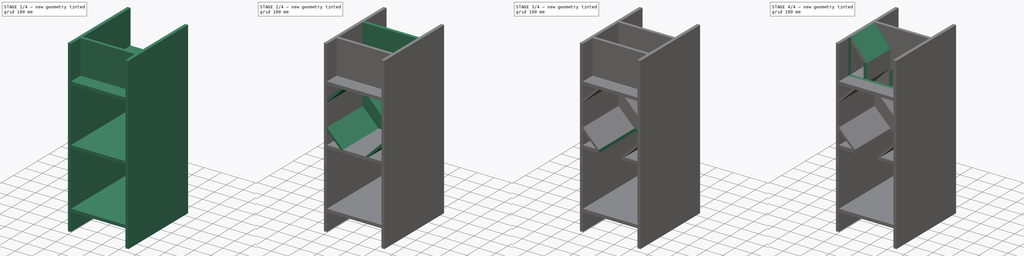
[diagram: build sequence overview — one tinted view per stage of 4, left to right]
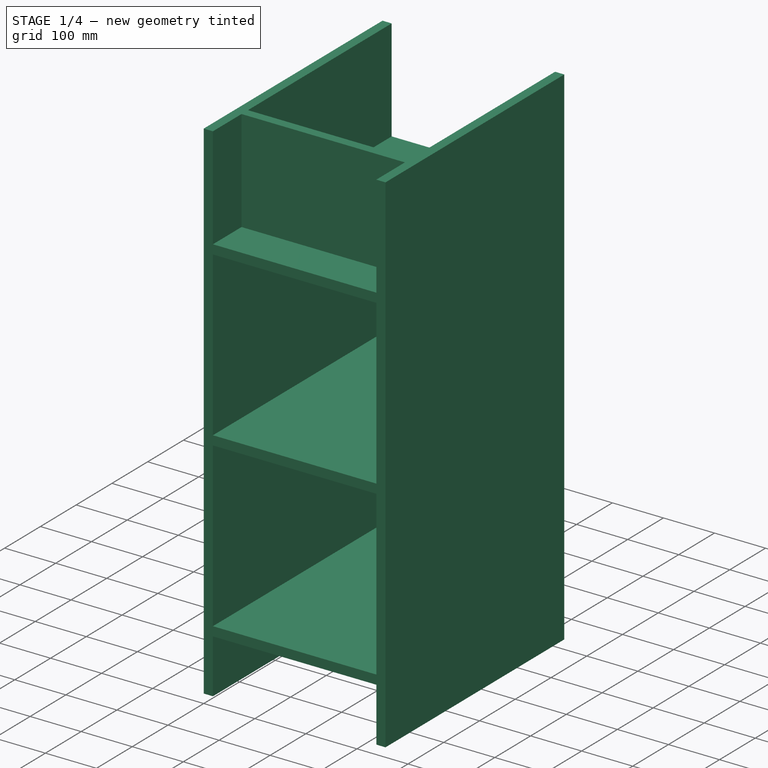
[diagram: stage 1 of 4 — iso view after this stage's code; geometry added in this stage tinted green]
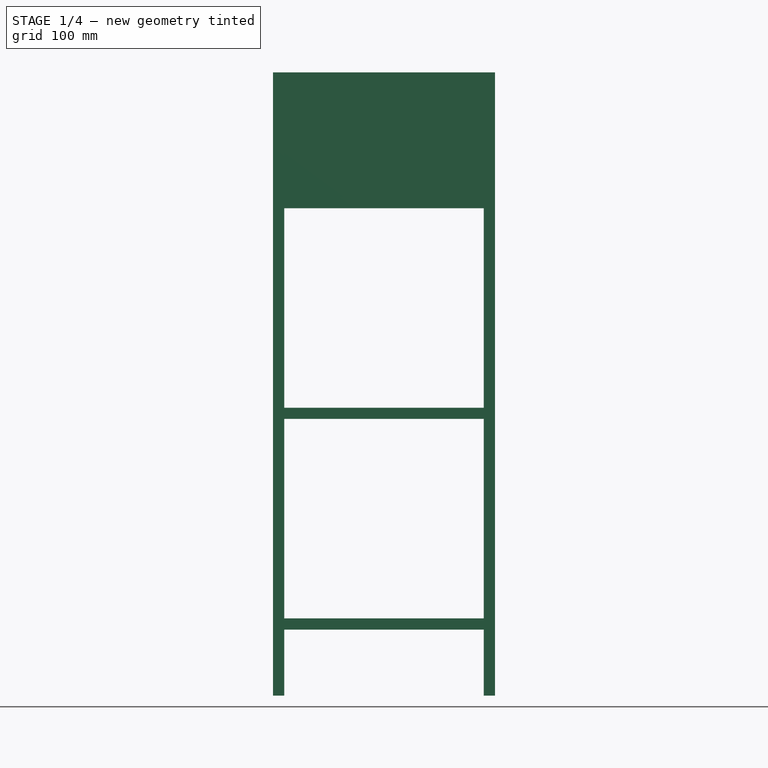
[diagram: stage 1 of 4 — front view after this stage's code; geometry added in this stage tinted green]
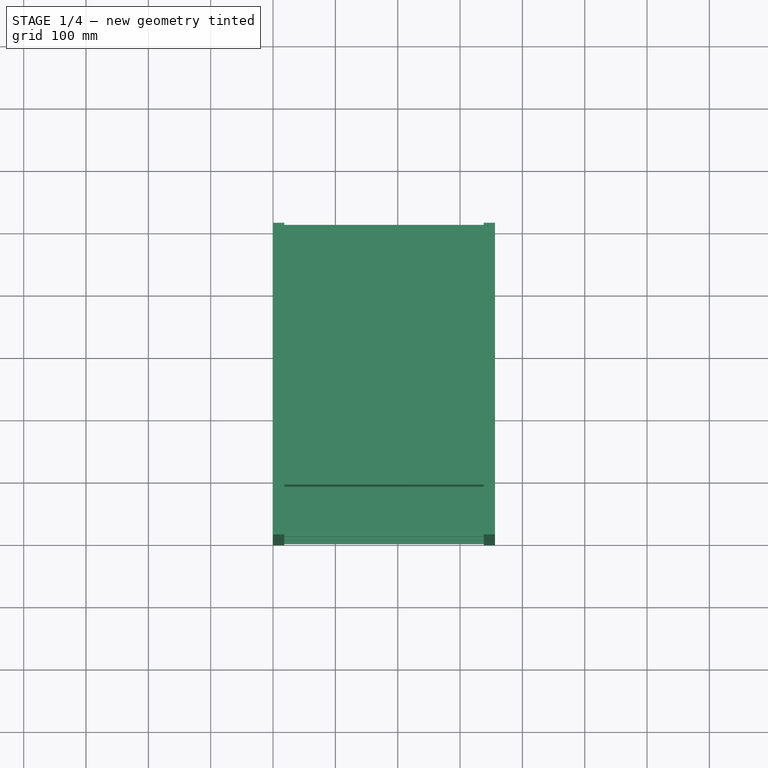
[diagram: stage 1 of 4 — top view after this stage's code; geometry added in this stage tinted green]
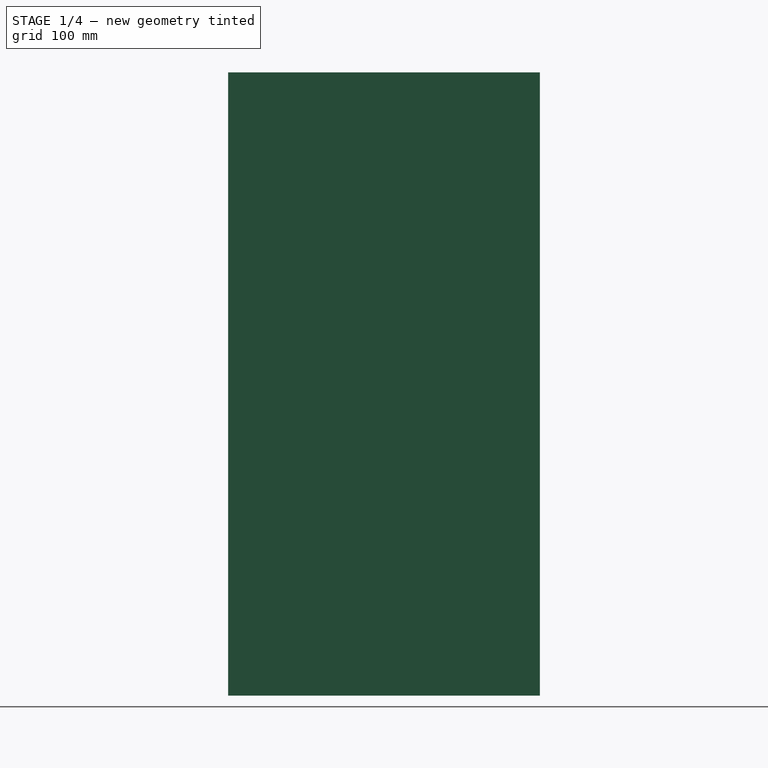
[diagram: stage 1 of 4 — right view after this stage's code; geometry added in this stage tinted green]
FCSTD DOCUMENT  (FreeCAD 0.21R33668 +26 (Git))
Label: Compostera3D
License: All rights reserved
LicenseURL: https://en.wikipedia.org/wiki/All_rights_reserved
objects: Sketcher::SketchObject×11, PartDesign::Pad×7, PartDesign::Pocket×4, PartDesign::Body×1, App::Part×1
note: 34 computed .brp shape members not serialized (recipe doc carries the construction recipe); baked Part::Feature solids carry a one-line shape summary decoded from their .brp

FEATURE [Sketcher::SketchObject] Sketch
  FullyConstrained = true
  MapMode = 5
  Placement = pos=(0,0,0) rot=(1,0,0;1.5708rad)
  Support = -> [XZ_Plane001]
  sketch-geometry (4):
    g0: LineSegment StartX=0 StartY=0 StartZ=0 EndX=356 EndY=0 EndZ=0
    g1: LineSegment StartX=356 StartY=0 StartZ=0 EndX=356 EndY=1000 EndZ=0
    g2: LineSegment StartX=356 StartY=1000 StartZ=0 EndX=0 EndY=1000 EndZ=0
    g3: LineSegment StartX=0 StartY=1000 StartZ=0 EndX=0 EndY=0 EndZ=0
  constraints (11):
    c: Coincident(g0,g1)
    c: Coincident(g1,g2)
    c: Coincident(g2,g3)
    c: Coincident(g3,g0)
    c: Horizontal(g0)
    c: Horizontal(g2)
    c: Vertical(g1)
    c: Vertical(g3)
    c: Coincident(g0,g-1)
    c: DistanceY(g0,g2) = 1000
    c: DistanceX(g0,g0) = 356
FEATURE [PartDesign::Pad] Pad
  Direction = (0,-1,2e-16)
  Length = 500
  Length2 = 10
  Placement = pos=(0,0,0) rot=(1,0,0;1.5708rad)
  Profile = -> Sketch
  ReferenceAxis = -> Sketch [N_Axis]
  Type = 0
FEATURE [Sketcher::SketchObject] Sketch001
  ExternalGeometry = -> [Pad]
  FullyConstrained = true
  MapMode = 5
  Placement = pos=(0,-500,2.21e-13) rot=(1,0,0;1.5708rad)
  Support = -> [Pad]
  sketch-geometry (16):
    g0: LineSegment StartX=18 StartY=1000 StartZ=0 EndX=338 EndY=1000 EndZ=0
    g1: LineSegment StartX=338 StartY=1000 StartZ=0 EndX=338 EndY=800 EndZ=0
    g2: LineSegment StartX=338 StartY=800 StartZ=0 EndX=18 EndY=800 EndZ=0
    g3: LineSegment StartX=18 StartY=800 StartZ=0 EndX=18 EndY=1000 EndZ=0
    g4: LineSegment StartX=18 StartY=782 StartZ=0 EndX=338 EndY=782 EndZ=0
    g5: LineSegment StartX=338 StartY=782 StartZ=0 EndX=338 EndY=462 EndZ=0
    g6: LineSegment StartX=338 StartY=462 StartZ=0 EndX=18 EndY=462 EndZ=0
    g7: LineSegment StartX=18 StartY=462 StartZ=0 EndX=18 EndY=782 EndZ=0
    g8: LineSegment StartX=18 StartY=444 StartZ=0 EndX=338 EndY=444 EndZ=0
    g9: LineSegment StartX=338 StartY=444 StartZ=0 EndX=338 EndY=124 EndZ=0
    g10: LineSegment StartX=338 StartY=124 StartZ=0 EndX=18 EndY=124 EndZ=0
    g11: LineSegment StartX=18 StartY=124 StartZ=0 EndX=18 EndY=444 EndZ=0
    g12: LineSegment StartX=18 StartY=0 StartZ=0 EndX=338 EndY=0 EndZ=0
    g13: LineSegment StartX=338 StartY=0 StartZ=0 EndX=338 EndY=106 EndZ=0
    g14: LineSegment StartX=338 StartY=106 StartZ=0 EndX=18 EndY=106 EndZ=0
    g15: LineSegment StartX=18 StartY=106 StartZ=0 EndX=18 EndY=0 EndZ=0
  constraints (48):
    c: Coincident(g0,g1)
    c: Coincident(g1,g2)
    c: Coincident(g2,g3)
    c: Coincident(g3,g0)
    c: Horizontal(g0)
    c: Horizontal(g2)
    c: Vertical(g1)
    c: Vertical(g3)
    c: PointOnObject(g0,g-3)
    c: DistanceX(g-3,g0) = 18
    c: DistanceX(g0,g0) = 320
    c: DistanceY(g2,g0) = 200
    c: Coincident(g4,g5)
    c: Coincident(g5,g6)
    c: Coincident(g6,g7)
    c: Coincident(g7,g4)
    c: Horizontal(g4)
    c: Horizontal(g6)
    c: Vertical(g5)
    c: Vertical(g7)
    c: DistanceX(g4,g-3) = 18
    c: DistanceX(g4,g4) = 320
    c: DistanceY(g7,g7) = 320
    c: DistanceY(g4,g2) = 18
    c: Coincident(g8,g9)
    c: Coincident(g9,g10)
    c: Coincident(g10,g11)
    c: Coincident(g11,g8)
    c: Horizontal(g8)
    c: Horizontal(g10)
    c: Vertical(g9)
    c: Vertical(g11)
    c: DistanceY(g8,g6) = 18
    c: DistanceY(g11,g11) = 320
    c: DistanceX(g8,g8) = 320
    c: DistanceX(g-1,g10) = 18
    c: Coincident(g12,g13)
    c: Coincident(g13,g14)
    c: Coincident(g14,g15)
    c: Coincident(g15,g12)
    c: Horizontal(g12)
    c: Horizontal(g14)
    c: Vertical(g13)
    c: Vertical(g15)
    c: PointOnObject(g12,g-1)
    c: DistanceX(g-1,g12) = 18
    c: DistanceX(g14,g13) = 320
    c: DistanceY(g14,g10) = 18
FEATURE [PartDesign::Pocket] Pocket
  BaseFeature = -> Pad
  Direction = (0,1,-2e-16)
  Length = 500
  Length2 = 5
  Placement = pos=(0,0,0) rot=(1,0,0;1.5708rad)
  Profile = -> Sketch001
  ReferenceAxis = -> Sketch001 [N_Axis]
  Type = 0
FEATURE [Sketcher::SketchObject] Sketch003
  ExternalGeometry = -> [Pocket]
  FullyConstrained = true
  MapMode = 5
  Placement = pos=(0,5.296e-13,800) rot=(0,0,1;3.14159rad)
  Support = -> [Pocket]
  sketch-geometry (4):
    g0: LineSegment StartX=-338 StartY=420 StartZ=0 EndX=-18 EndY=420 EndZ=0
    g1: LineSegment StartX=-18 StartY=420 StartZ=0 EndX=-18 EndY=402 EndZ=0
    g2: LineSegment StartX=-18 StartY=402 StartZ=0 EndX=-338 EndY=402 EndZ=0
    g3: LineSegment StartX=-338 StartY=402 StartZ=0 EndX=-338 EndY=420 EndZ=0
  constraints (12):
    c: Coincident(g0,g1)
    c: Coincident(g1,g2)
    c: Coincident(g2,g3)
    c: Coincident(g3,g0)
    c: Horizontal(g0)
    c: Horizontal(g2)
    c: Vertical(g1)
    c: Vertical(g3)
    c: DistanceX(g0,g0) = 320
    c: PointOnObject(g0,g-3)
    c: DistanceY(g3,g3) = 18
    c: DistanceY(g0,g-3) = 80
FEATURE [PartDesign::Pad] Pad001
  BaseFeature = -> Pocket
  Direction = (0,2e-16,1)
  Length = 200
  Length2 = 10
  Placement = pos=(0,0,0) rot=(1,0,0;1.5708rad)
  Profile = -> Sketch003
  ReferenceAxis = -> Sketch003 [N_Axis]
  Type = 0
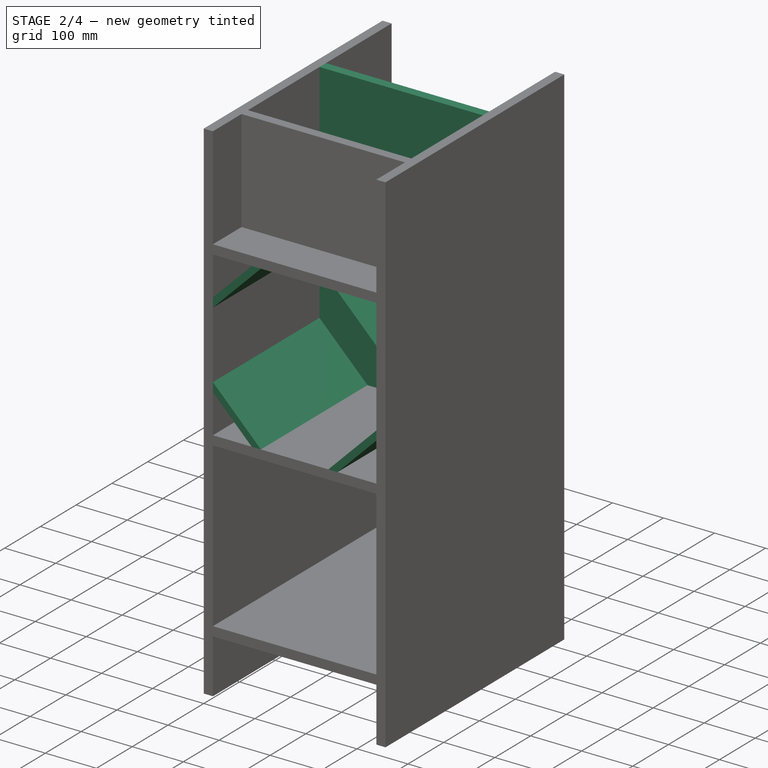
[diagram: stage 2 of 4 — iso view after this stage's code; geometry added in this stage tinted green]
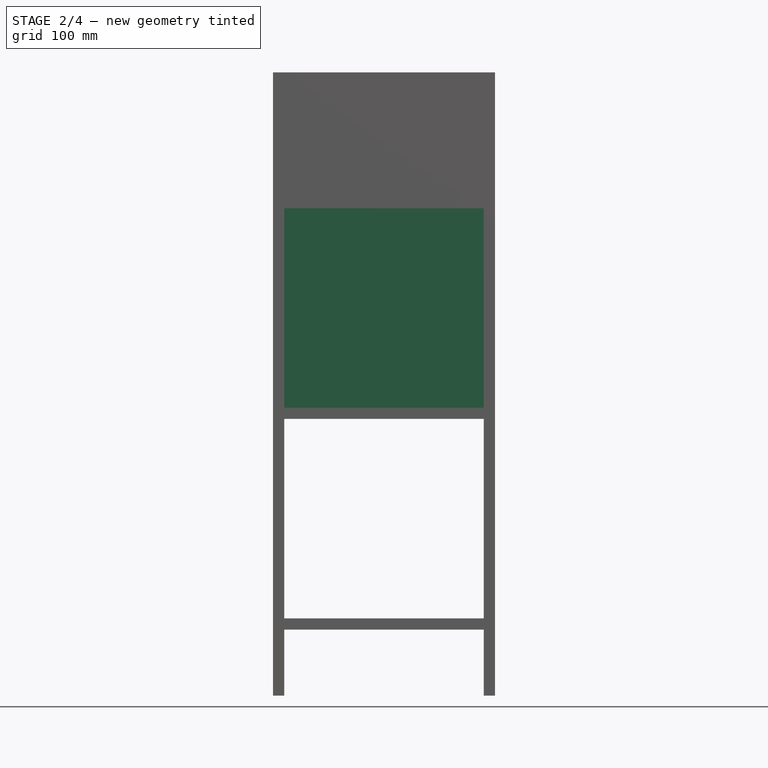
[diagram: stage 2 of 4 — front view after this stage's code; geometry added in this stage tinted green]
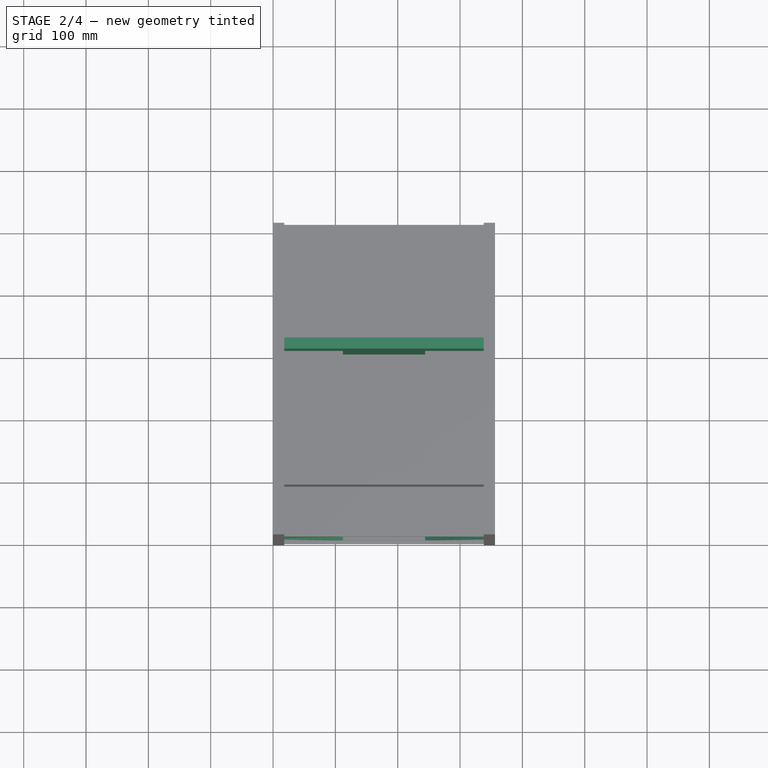
[diagram: stage 2 of 4 — top view after this stage's code; geometry added in this stage tinted green]
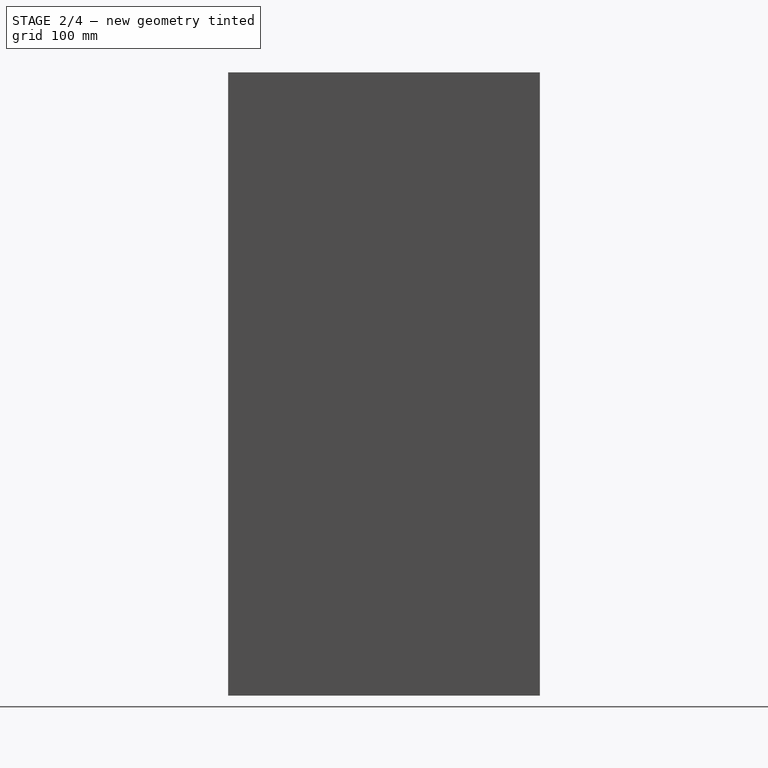
[diagram: stage 2 of 4 — right view after this stage's code; geometry added in this stage tinted green]
FEATURE [Sketcher::SketchObject] Sketch004
  ExternalGeometry = -> [Pad001]
  FullyConstrained = true
  MapMode = 5
  Placement = pos=(0,3.059e-13,462) rot=(0,0,1;3.14159rad)
  Support = -> [Pad001]
  sketch-geometry (4):
    g0: LineSegment StartX=-338 StartY=202 StartZ=0 EndX=-18 EndY=202 EndZ=0
    g1: LineSegment StartX=-18 StartY=202 StartZ=0 EndX=-18 EndY=184 EndZ=0
    g2: LineSegment StartX=-18 StartY=184 StartZ=0 EndX=-338 EndY=184 EndZ=0
    g3: LineSegment StartX=-338 StartY=184 StartZ=0 EndX=-338 EndY=202 EndZ=0
  constraints (12):
    c: Coincident(g0,g1)
    c: Coincident(g1,g2)
    c: Coincident(g2,g3)
    c: Coincident(g3,g0)
    c: Horizontal(g0)
    c: Horizontal(g2)
    c: Vertical(g1)
    c: Vertical(g3)
    c: PointOnObject(g0,g-3)
    c: DistanceX(g0,g0) = 320
    c: DistanceY(g3,g3) = 18
    c: DistanceY(g-3,g2) = 184
FEATURE [PartDesign::Pad] Pad002
  BaseFeature = -> Pad001
  Direction = (0,7e-16,1)
  Length = 538
  Length2 = 10
  Placement = pos=(0,0,0) rot=(1,0,0;1.5708rad)
  Profile = -> Sketch004
  ReferenceAxis = -> Sketch004 [N_Axis]
  Type = 0
FEATURE [Sketcher::SketchObject] Sketch005
  ExternalGeometry = -> [Pad002]
  FullyConstrained = true
  MapMode = 5
  Placement = pos=(0,5.296e-13,800) rot=(0,0,1;3.14159rad)
  Support = -> [Pad002]
  sketch-geometry (4):
    g0: LineSegment StartX=-244 StartY=402 StartZ=0 EndX=-112 EndY=402 EndZ=0
    g1: LineSegment StartX=-112 StartY=402 StartZ=0 EndX=-112 EndY=202 EndZ=0
    g2: LineSegment StartX=-112 StartY=202 StartZ=0 EndX=-244 EndY=202 EndZ=0
    g3: LineSegment StartX=-244 StartY=202 StartZ=0 EndX=-244 EndY=402 EndZ=0
  constraints (12):
    c: Coincident(g0,g1)
    c: Coincident(g1,g2)
    c: Coincident(g2,g3)
    c: Coincident(g3,g0)
    c: Horizontal(g0)
    c: Horizontal(g2)
    c: Vertical(g1)
    c: Vertical(g3)
    c: PointOnObject(g0,g-3)
    c: PointOnObject(g2,g-4)
    c: DistanceX(g0,g0) = 132
    c: DistanceX(g-5,g0) = 94
FEATURE [PartDesign::Pocket] Pocket001
  BaseFeature = -> Pad002
  Direction = (0,-8e-16,-1)
  Length = 18
  Length2 = 5
  Placement = pos=(0,0,0) rot=(1,0,0;1.5708rad)
  Profile = -> Sketch005
  ReferenceAxis = -> Sketch005 [N_Axis]
  Type = 0
FEATURE [Sketcher::SketchObject] Sketch006
  ExternalGeometry = -> [Pocket001]
  FullyConstrained = true
  MapMode = 5
  Placement = pos=(0,-202,1.56e-13) rot=(1,0,0;1.5708rad)
  Support = -> [Pocket001]
  sketch-geometry (16):
    g0: LineSegment StartX=112 StartY=782 StartZ=0 EndX=18 EndY=688 EndZ=0
    g1: LineSegment StartX=94 StartY=782 StartZ=0 EndX=18 EndY=706 EndZ=0
    g2: LineSegment StartX=244 StartY=782 StartZ=0 EndX=338 EndY=688 EndZ=0
    g3: LineSegment StartX=262 StartY=782 StartZ=0 EndX=338 EndY=706 EndZ=0
    g4: LineSegment StartX=18 StartY=538 StartZ=0 EndX=94 EndY=462 EndZ=0
    g5: LineSegment StartX=18 StartY=556 StartZ=0 EndX=112 EndY=462 EndZ=0
    g6: LineSegment StartX=244 StartY=462 StartZ=0 EndX=338 EndY=556 EndZ=0
    g7: LineSegment StartX=338 StartY=538 StartZ=0 EndX=262 EndY=462 EndZ=0
    g8: LineSegment StartX=18 StartY=556 StartZ=0 EndX=18 EndY=538 EndZ=0
    g9: LineSegment StartX=94 StartY=462 StartZ=0 EndX=112 EndY=462 EndZ=0
    g10: LineSegment StartX=262 StartY=462 StartZ=0 EndX=244 EndY=462 EndZ=0
    g11: LineSegment StartX=338 StartY=556 StartZ=0 EndX=338 EndY=538 EndZ=0
    g12: LineSegment StartX=18 StartY=706 StartZ=0 EndX=18 EndY=688 EndZ=0
    g13: LineSegment StartX=94 StartY=782 StartZ=0 EndX=112 EndY=782 EndZ=0
    g14: LineSegment StartX=244 StartY=782 StartZ=0 EndX=262 EndY=782 EndZ=0
    g15: LineSegment StartX=338 StartY=706 StartZ=0 EndX=338 EndY=688 EndZ=0
  constraints (47):
    c: Coincident(g0,g-3)
    c: PointOnObject(g0,g-4)
    c: PointOnObject(g1,g-3)
    c: PointOnObject(g1,g-4)
    c: DistanceX(g-4,g1) = 76
    c: DistanceY(g1,g-4) = 76
    c: DistanceY(g0,g1) = 18
    c: Coincident(g2,g-5)
    c: PointOnObject(g2,g-6)
    c: PointOnObject(g3,g-5)
    c: PointOnObject(g3,g-6)
    c: DistanceX(g3,g-6) = 76
    c: DistanceY(g2,g3) = 18
    c: DistanceY(g3,g-6) = 76
    c: PointOnObject(g4,g-4)
    c: PointOnObject(g4,g-7)
    c: PointOnObject(g5,g-4)
    c: PointOnObject(g5,g-7)
    c: PointOnObject(g6,g-7)
    c: PointOnObject(g7,g-6)
    c: PointOnObject(g7,g-7)
    c: DistanceY(g4,g5) = 18
    c: DistanceY(g-7,g4) = 76
    c: PointOnObject(g6,g-6)
    c: DistanceY(g7,g6) = 18
    c: DistanceY(g-7,g7) = 76
    c: DistanceX(g-7,g4) = 76
    c: DistanceX(g4,g5) = 18
    c: DistanceX(g6,g7) = 18
    c: DistanceX(g7,g-7) = 76
    c: Coincident(g8,g5)
    c: Coincident(g8,g4)
    c: Coincident(g9,g4)
    c: Coincident(g9,g5)
    c: Coincident(g10,g7)
    c: Coincident(g10,g6)
    c: Coincident(g11,g6)
    c: Coincident(g11,g7)
    c: Coincident(g12,g1)
    c: Coincident(g12,g0)
    c: PointOnObject(g13,g1)
    c: Coincident(g13,g0)
    c: Horizontal(g13)
    c: Coincident(g14,g2)
    c: Coincident(g14,g3)
    c: Coincident(g15,g3)
    c: Coincident(g15,g2)
FEATURE [PartDesign::Pad] Pad003
  BaseFeature = -> Pocket001
  Direction = (0,-1,7e-16)
  Length = 298
  Length2 = 10
  Placement = pos=(0,0,0) rot=(1,0,0;1.5708rad)
  Profile = -> Sketch006
  ReferenceAxis = -> Sketch006 [N_Axis]
  Type = 0
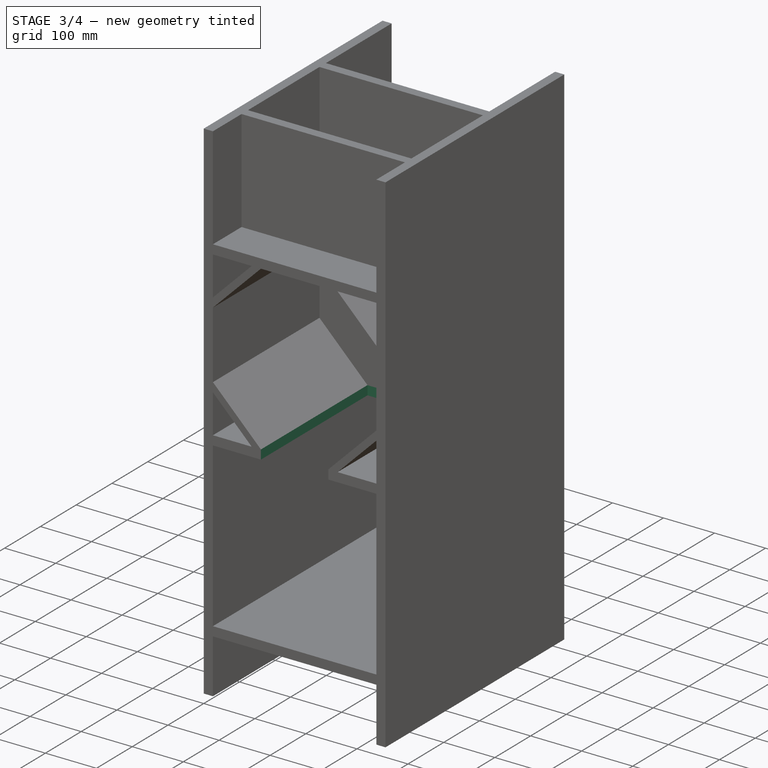
[diagram: stage 3 of 4 — iso view after this stage's code; geometry added in this stage tinted green]
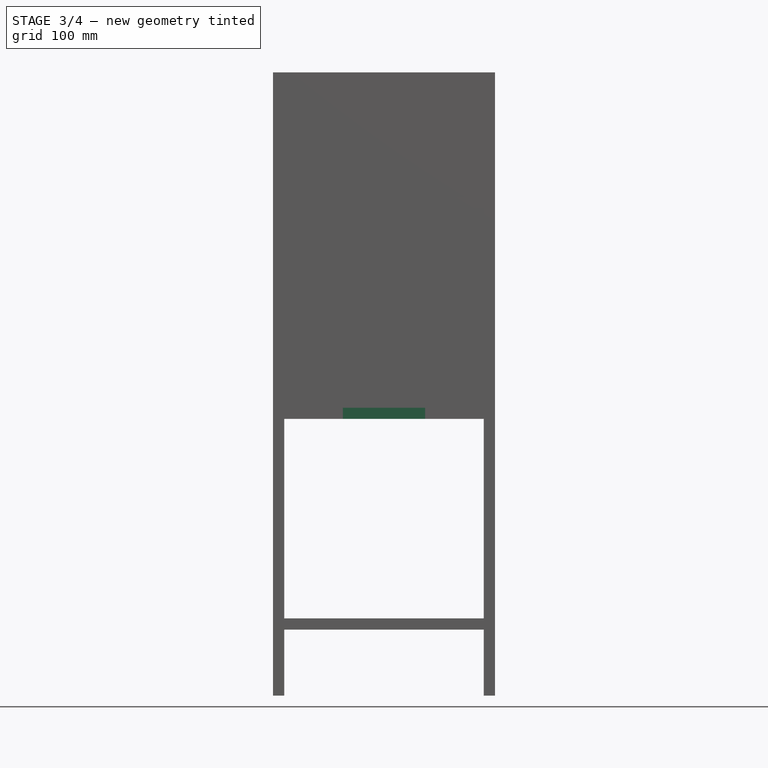
[diagram: stage 3 of 4 — front view after this stage's code; geometry added in this stage tinted green]
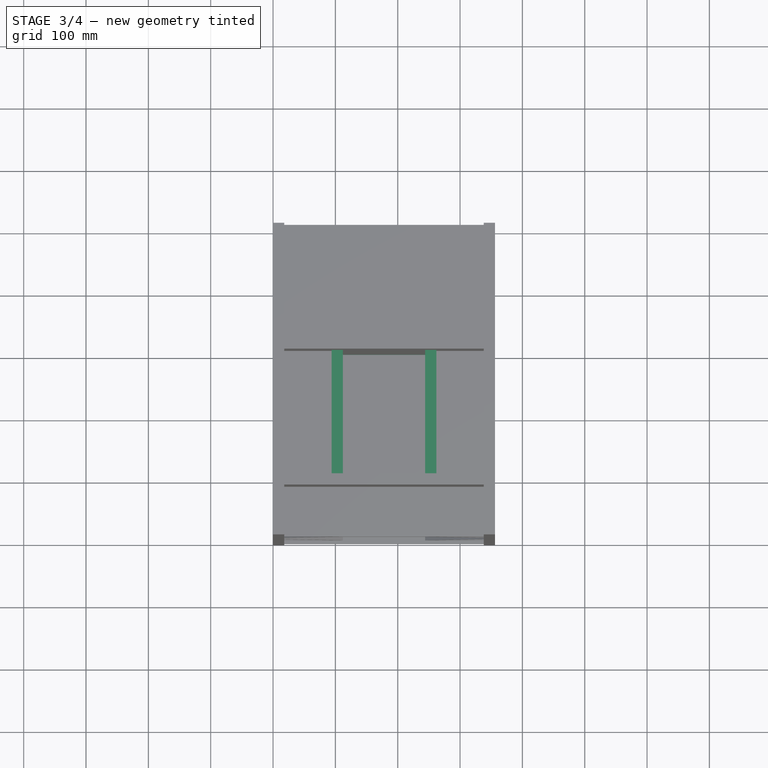
[diagram: stage 3 of 4 — top view after this stage's code; geometry added in this stage tinted green]
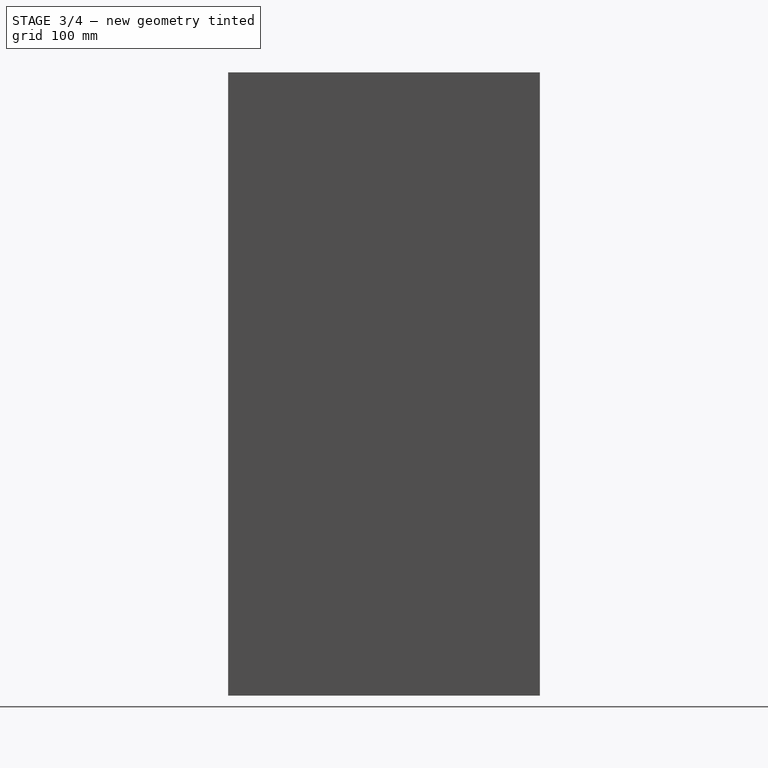
[diagram: stage 3 of 4 — right view after this stage's code; geometry added in this stage tinted green]
FEATURE [Sketcher::SketchObject] Sketch007
  ExternalGeometry = -> [Pad003]
  FullyConstrained = true
  MapMode = 5
  Placement = pos=(0,3.059e-13,462) rot=(0,0,1;3.14159rad)
  Support = -> [Pad003]
  sketch-geometry (4):
    g0: LineSegment StartX=-244 StartY=500 StartZ=0 EndX=-112 EndY=500 EndZ=0
    g1: LineSegment StartX=-112 StartY=500 StartZ=0 EndX=-112 EndY=202 EndZ=0
    g2: LineSegment StartX=-112 StartY=202 StartZ=0 EndX=-244 EndY=202 EndZ=0
    g3: LineSegment StartX=-244 StartY=202 StartZ=0 EndX=-244 EndY=500 EndZ=0
  constraints (10):
    c: Coincident(g0,g1)
    c: Coincident(g1,g2)
    c: Coincident(g2,g3)
    c: Coincident(g3,g0)
    c: Horizontal(g0)
    c: Horizontal(g2)
    c: Vertical(g1)
    c: Vertical(g3)
    c: Coincident(g0,g-8)
    c: Coincident(g1,g-7)
FEATURE [PartDesign::Pocket] Pocket002
  BaseFeature = -> Pad003
  Direction = (0,-1e-15,-1)
  Length = 18
  Length2 = 5
  Placement = pos=(0,0,0) rot=(1,0,0;1.5708rad)
  Profile = -> Sketch007
  ReferenceAxis = -> Sketch007 [N_Axis]
  Type = 0
FEATURE [Sketcher::SketchObject] Sketch008
  ExternalGeometry = -> [Pocket002]
  FullyConstrained = true
  MapMode = 5
  Placement = pos=(0,5.296e-13,800) rot=(0,0,1;3.14159rad)
  Support = -> [Pocket002]
  sketch-geometry (8):
    g0: LineSegment StartX=-244 StartY=402 StartZ=0 EndX=-262 EndY=402 EndZ=0
    g1: LineSegment StartX=-262 StartY=402 StartZ=0 EndX=-262 EndY=202 EndZ=0
    g2: LineSegment StartX=-262 StartY=202 StartZ=0 EndX=-244 EndY=202 EndZ=0
    g3: LineSegment StartX=-244 StartY=202 StartZ=0 EndX=-244 EndY=402 EndZ=0
    g4: LineSegment StartX=-112 StartY=402 StartZ=0 EndX=-94 EndY=402 EndZ=0
    g5: LineSegment StartX=-94 StartY=402 StartZ=0 EndX=-94 EndY=202 EndZ=0
    g6: LineSegment StartX=-94 StartY=202 StartZ=0 EndX=-112 EndY=202 EndZ=0
    g7: LineSegment StartX=-112 StartY=202 StartZ=0 EndX=-112 EndY=402 EndZ=0
  constraints (24):
    c: Coincident(g0,g1)
    c: Coincident(g1,g2)
    c: Coincident(g2,g3)
    c: Coincident(g3,g0)
    c: Horizontal(g0)
    c: Horizontal(g2)
    c: Vertical(g1)
    c: Vertical(g3)
    c: PointOnObject(g0,g-3)
    c: PointOnObject(g1,g-6)
    c: DistanceX(g2,g2) = 18
    c: Coincident(g4,g5)
    c: Coincident(g5,g6)
    c: Coincident(g6,g7)
    c: Coincident(g7,g4)
    c: Horizontal(g4)
    c: Horizontal(g6)
    c: Vertical(g5)
    c: Vertical(g7)
    c: PointOnObject(g4,g-4)
    c: PointOnObject(g5,g-8)
    c: DistanceX(g6,g6) = 18
    c: PointOnObject(g0,g-5)
    c: PointOnObject(g4,g-7)
FEATURE [PartDesign::Pad] Pad004
  BaseFeature = -> Pocket002
  Direction = (0,1.1e-15,1)
  Length = 84
  Length2 = 10
  Placement = pos=(0,0,0) rot=(1,0,0;1.5708rad)
  Profile = -> Sketch008
  ReferenceAxis = -> Sketch008 [N_Axis]
  Type = 0
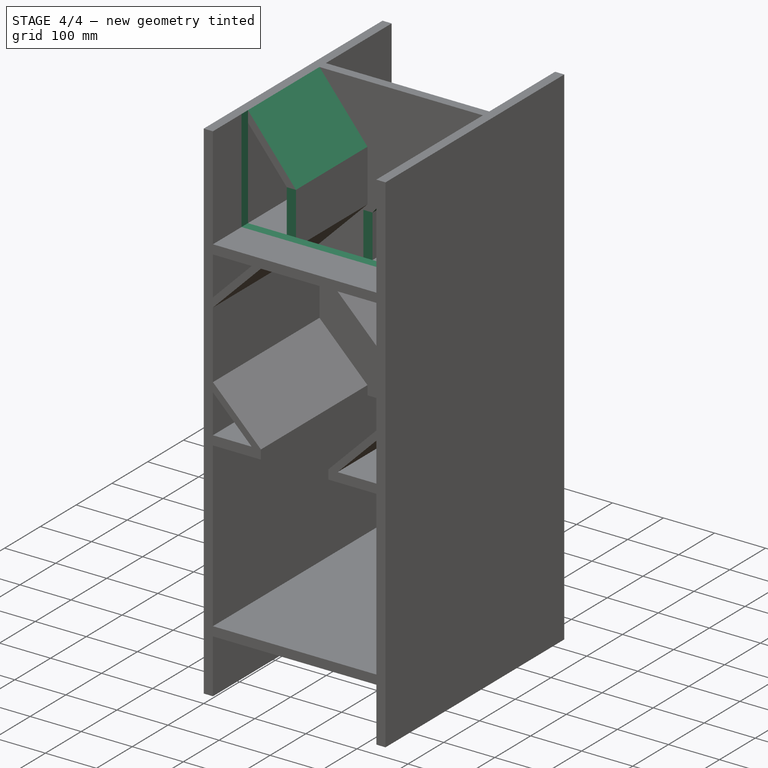
[diagram: stage 4 of 4 — iso view after this stage's code; geometry added in this stage tinted green]
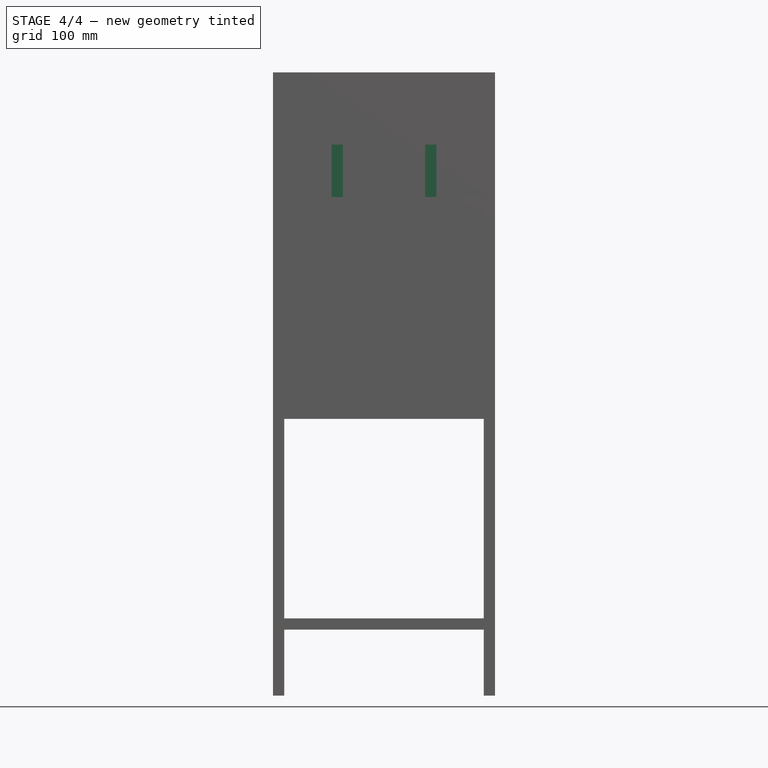
[diagram: stage 4 of 4 — front view after this stage's code; geometry added in this stage tinted green]
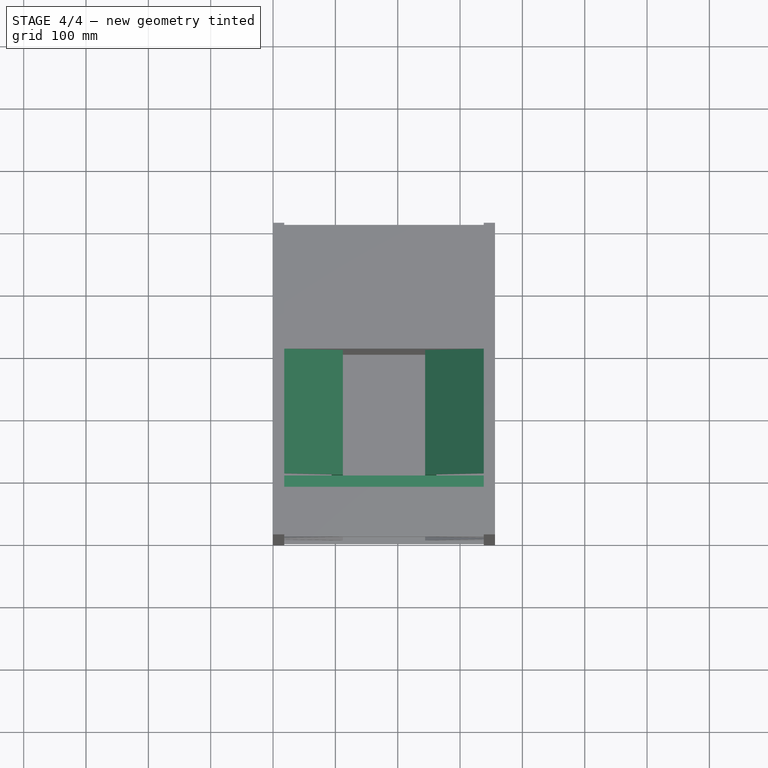
[diagram: stage 4 of 4 — top view after this stage's code; geometry added in this stage tinted green]
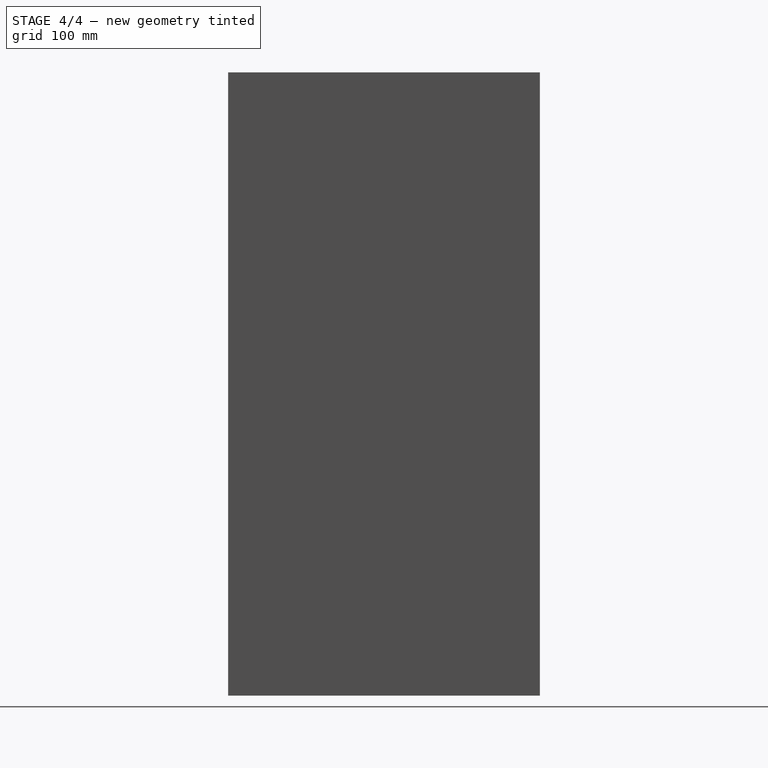
[diagram: stage 4 of 4 — right view after this stage's code; geometry added in this stage tinted green]
FEATURE [Sketcher::SketchObject] Sketch009
  ExternalGeometry = -> [Pad004]
  FullyConstrained = true
  MapMode = 5
  Placement = pos=(0,-420,2.781e-13) rot=(1,0,0;1.5708rad)
  Support = -> [Pad004]
  sketch-geometry (4):
    g0: LineSegment StartX=18 StartY=1000 StartZ=0 EndX=338 EndY=1000 EndZ=0
    g1: LineSegment StartX=338 StartY=1000 StartZ=0 EndX=338 EndY=800 EndZ=0
    g2: LineSegment StartX=338 StartY=800 StartZ=0 EndX=18 EndY=800 EndZ=0
    g3: LineSegment StartX=18 StartY=800 StartZ=0 EndX=18 EndY=1000 EndZ=0
  constraints (10):
    c: Coincident(g0,g1)
    c: Coincident(g1,g2)
    c: Coincident(g2,g3)
    c: Coincident(g3,g0)
    c: Horizontal(g0)
    c: Horizontal(g2)
    c: Vertical(g1)
    c: Vertical(g3)
    c: Coincident(g0,g-4)
    c: Coincident(g1,g-6)
FEATURE [PartDesign::Pocket] Pocket003
  BaseFeature = -> Pad004
  Direction = (0,1,-1.1e-15)
  Length = 18
  Length2 = 5
  Placement = pos=(0,0,0) rot=(1,0,0;1.5708rad)
  Profile = -> Sketch009
  ReferenceAxis = -> Sketch009 [N_Axis]
  Type = 0
FEATURE [Sketcher::SketchObject] Sketch010
  ExternalGeometry = -> [Pocket003]
  FullyConstrained = true
  MapMode = 5
  Placement = pos=(0,-202,1.56e-13) rot=(1,0,0;1.5708rad)
  Support = -> [Pocket003]
  sketch-geometry (4):
    g0: LineSegment StartX=112 StartY=884 StartZ=0 EndX=18 EndY=1000 EndZ=0
    g1: LineSegment StartX=112 StartY=884 StartZ=0 EndX=94 EndY=884 EndZ=0
    g2: LineSegment StartX=18 StartY=1000 StartZ=0 EndX=18 EndY=977.785 EndZ=0
    g3: LineSegment StartX=18 StartY=977.785 StartZ=0 EndX=94 EndY=884 EndZ=0
  constraints (9):
    c: Coincident(g0,g-3)
    c: Coincident(g0,g-4)
    c: Coincident(g1,g0)
    c: Coincident(g1,g-3)
    c: Coincident(g2,g0)
    c: Vertical(g2)
    c: Coincident(g3,g2)
    c: Coincident(g3,g1)
    c: Angle(g1,g3) = 2.25182
FEATURE [PartDesign::Pad] Pad005
  AlongSketchNormal = false
  BaseFeature = -> Pocket003
  Direction = (0,-1,7e-16)
  Length = 200
  Length2 = 10
  Placement = pos=(0,0,0) rot=(1,0,0;1.5708rad)
  Profile = -> Sketch010
  ReferenceAxis = -> Sketch010 [N_Axis]
  Type = 0
FEATURE [Sketcher::SketchObject] Sketch011
  ExternalGeometry = -> [Pad005]
  FullyConstrained = true
  MapMode = 5
  Placement = pos=(0,-202,1.784e-13) rot=(1,0,0;1.5708rad)
  Support = -> [Pad005]
  sketch-geometry (4):
    g0: LineSegment StartX=244 StartY=884 StartZ=0 EndX=338 EndY=1000 EndZ=0
    g1: LineSegment StartX=244 StartY=884 StartZ=0 EndX=262 EndY=884 EndZ=0
    g2: LineSegment StartX=338 StartY=1000 StartZ=0 EndX=338 EndY=977.785 EndZ=0
    g3: LineSegment StartX=262 StartY=884 StartZ=0 EndX=338 EndY=977.785 EndZ=0
  constraints (9):
    c: Coincident(g0,g-3)
    c: Coincident(g0,g-4)
    c: Coincident(g1,g0)
    c: Coincident(g1,g-3)
    c: Coincident(g2,g0)
    c: Coincident(g3,g1)
    c: Coincident(g3,g2)
    c: Angle(g3,g1) = 2.25182
    c: PointOnObject(g2,g-4)
FEATURE [PartDesign::Pad] Pad006
  BaseFeature = -> Pad005
  Direction = (0,-1,7e-16)
  Length = 200
  Length2 = 10
  Placement = pos=(0,0,0) rot=(1,0,0;1.5708rad)
  Profile = -> Sketch011
  ReferenceAxis = -> Sketch011 [N_Axis]
  Type = 0
FEATURE [PartDesign::Body] Body
  Group = -> [Sketch,Pad,Sketch001,Pocket,Sketch003,Pad001,Sketch004,Pad002,Sketch005,Pocket001,Sketch006,Pad003,Sketch007,Pocket002,Sketch008,Pad004,Sketch009,Pocket003,Sketch010,Pad005,Sketch011,Pad006]
  Origin = -> Origin001
  Tip = -> Pad006
FEATURE [App::Part] Part
  Group = -> [Body]
  Origin = -> Origin
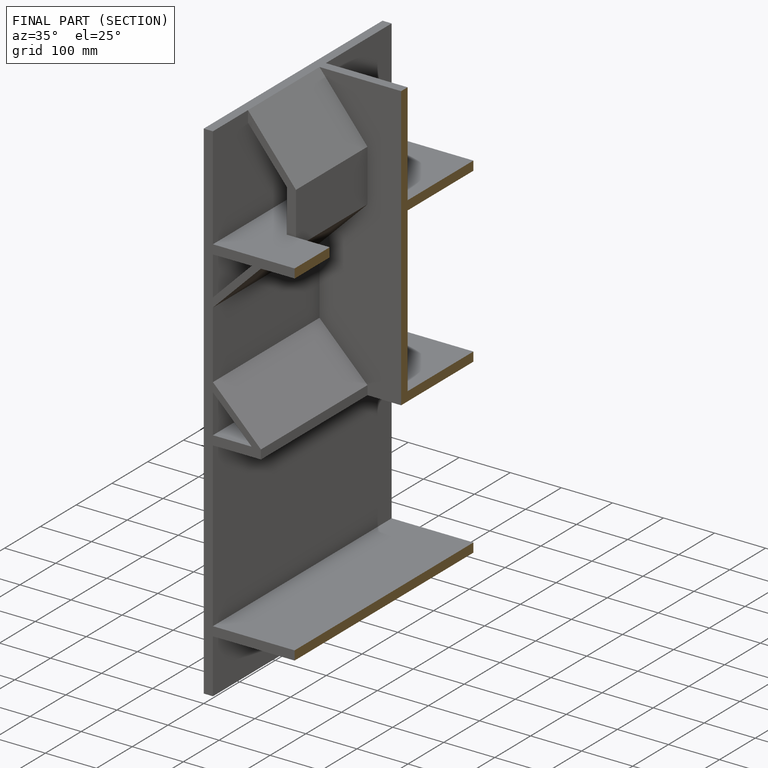
[diagram: finished part — half-section view (interior)]
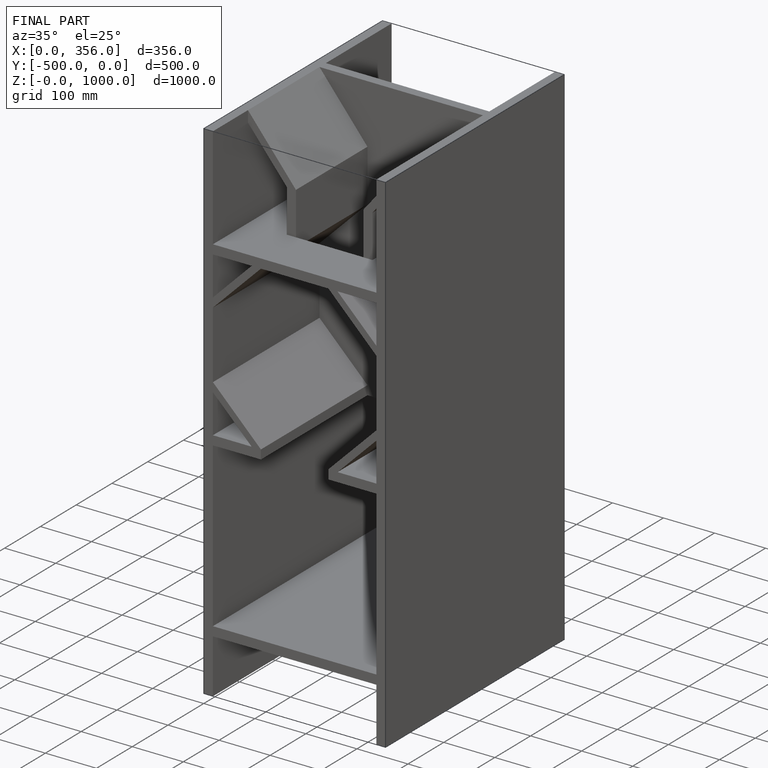
[diagram: finished part — iso view with bounding-box wireframe]
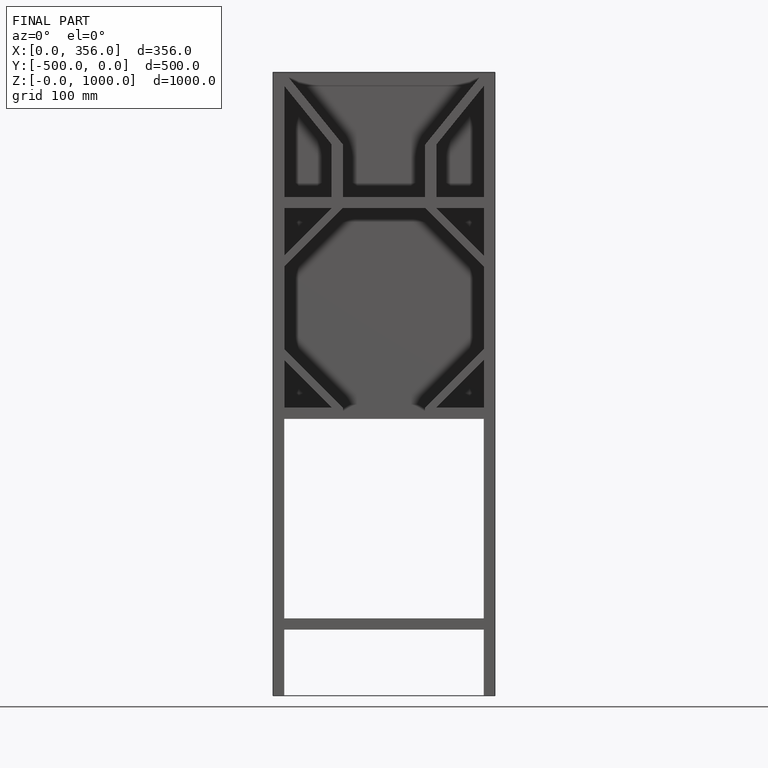
[diagram: finished part — front view with bounding-box wireframe]
